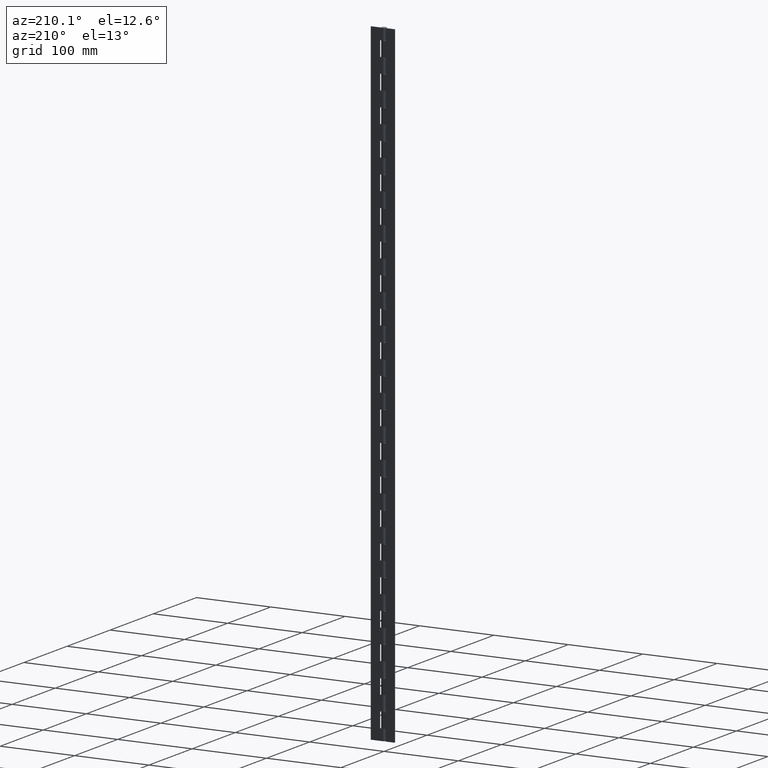
[diagram: clean part render]
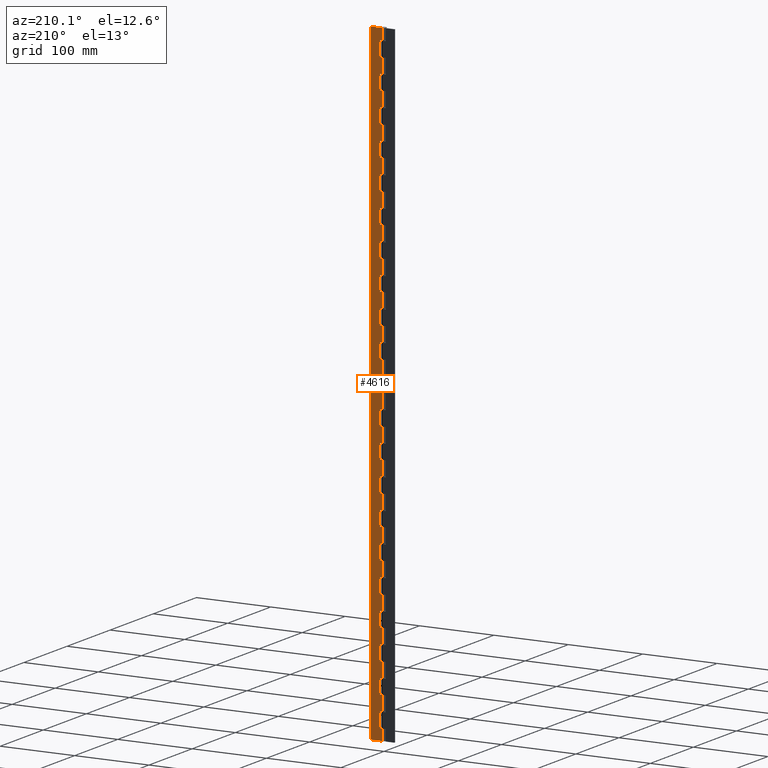
[diagram: same view with one face highlighted and labeled with its STEP entity id]
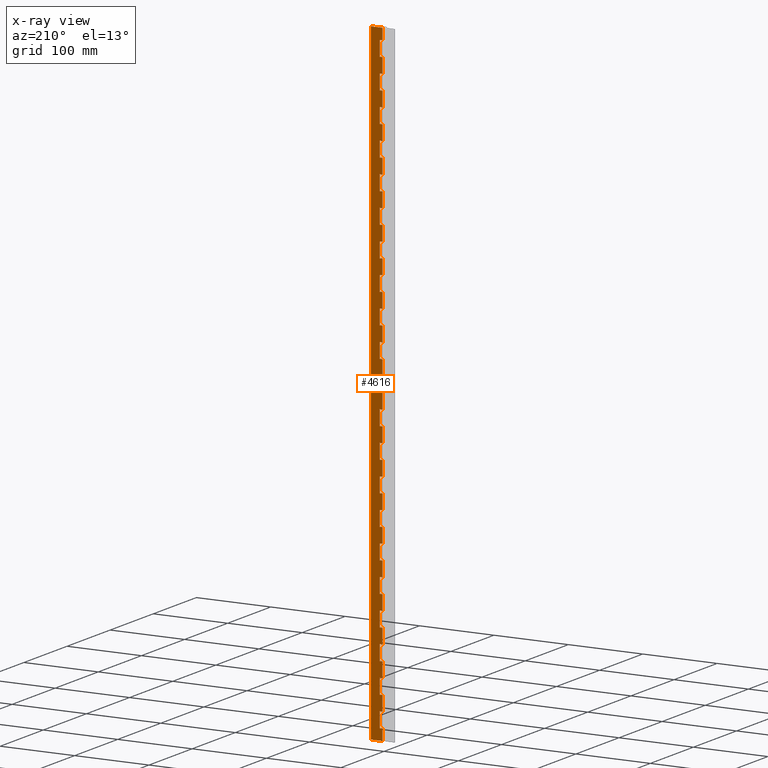
[diagram: x-ray of the same camera — body ghosted, the highlighted face saturated]
A machine part, auxiliary view. The second image highlights one B-rep face of the part: STEP entity #4616.
The next image is the same camera in x-ray: the body ghosted, the highlighted face saturated — about 0% of this face is hidden behind the body in this view.
In plain terms, the highlighted face is a freeform B-spline surface patch.
Its self-contained STEP definition (entity closure, byte-faithful):
#300=CARTESIAN_POINT('',(-5.969928E-016,3.250000000000000,15.000022000000049));
#301=VERTEX_POINT('',#300);
#358=CARTESIAN_POINT('',(4.0,3.250000000000000,15.000022000000049));
#359=VERTEX_POINT('',#358);
#365=CARTESIAN_POINT('',(4.0,3.250000000000000,15.000022000000049));
#366=CARTESIAN_POINT('',(-5.969928E-016,3.250000000000000,15.000022000000049));
#367=QUASI_UNIFORM_CURVE('',1,(#365,#366),.UNSPECIFIED.,.F.,.U.);
#368=EDGE_CURVE('',#359,#301,#367,.T.);
#385=CARTESIAN_POINT('',(4.0,3.250000000000000,35.000022000000087));
#386=VERTEX_POINT('',#385);
#392=CARTESIAN_POINT('',(4.0,3.250000000000000,35.000022000000087));
#393=CARTESIAN_POINT('',(4.0,3.250000000000000,15.000022000000049));
#394=QUASI_UNIFORM_CURVE('',1,(#392,#393),.UNSPECIFIED.,.F.,.U.);
#395=EDGE_CURVE('',#386,#359,#394,.T.);
#408=CARTESIAN_POINT('',(-5.969928E-016,3.250000000000000,35.000022000000087));
#409=VERTEX_POINT('',#408);
#429=CARTESIAN_POINT('',(-5.969928E-016,3.250000000000000,35.000022000000087));
#430=CARTESIAN_POINT('',(4.0,3.250000000000000,35.000022000000087));
#431=QUASI_UNIFORM_CURVE('',1,(#429,#430),.UNSPECIFIED.,.F.,.U.);
#432=EDGE_CURVE('',#409,#386,#431,.T.);
#476=CARTESIAN_POINT('',(-5.969928E-016,3.250000000000000,55.000022000000101));
#477=VERTEX_POINT('',#476);
#534=CARTESIAN_POINT('',(4.0,3.250000000000000,55.000022000000101));
#535=VERTEX_POINT('',#534);
#541=CARTESIAN_POINT('',(4.0,3.250000000000000,55.000022000000101));
#542=CARTESIAN_POINT('',(-5.969928E-016,3.250000000000000,55.000022000000101));
#543=QUASI_UNIFORM_CURVE('',1,(#541,#542),.UNSPECIFIED.,.F.,.U.);
#544=EDGE_CURVE('',#535,#477,#543,.T.);
#561=CARTESIAN_POINT('',(4.0,3.250000000000000,75.000022000000101));
#562=VERTEX_POINT('',#561);
#568=CARTESIAN_POINT('',(4.0,3.250000000000000,75.000022000000101));
#569=CARTESIAN_POINT('',(4.0,3.250000000000000,55.000022000000101));
#570=QUASI_UNIFORM_CURVE('',1,(#568,#569),.UNSPECIFIED.,.F.,.U.);
#571=EDGE_CURVE('',#562,#535,#570,.T.);
#584=CARTESIAN_POINT('',(-5.969928E-016,3.250000000000000,75.000022000000101));
#585=VERTEX_POINT('',#584);
#605=CARTESIAN_POINT('',(-5.969928E-016,3.250000000000000,75.000022000000101));
#606=CARTESIAN_POINT('',(4.0,3.250000000000000,75.000022000000101));
#607=QUASI_UNIFORM_CURVE('',1,(#605,#606),.UNSPECIFIED.,.F.,.U.);
#608=EDGE_CURVE('',#585,#562,#607,.T.);
#652=CARTESIAN_POINT('',(-5.969928E-016,3.250000000000000,95.000022000000101));
#653=VERTEX_POINT('',#652);
#710=CARTESIAN_POINT('',(4.0,3.250000000000000,95.000022000000101));
#711=VERTEX_POINT('',#710);
#717=CARTESIAN_POINT('',(4.0,3.250000000000000,95.000022000000101));
#718=CARTESIAN_POINT('',(-5.969928E-016,3.250000000000000,95.000022000000101));
#719=QUASI_UNIFORM_CURVE('',1,(#717,#718),.UNSPECIFIED.,.F.,.U.);
#720=EDGE_CURVE('',#711,#653,#719,.T.);
#737=CARTESIAN_POINT('',(4.0,3.250000000000000,115.000022000000200));
#738=VERTEX_POINT('',#737);
#744=CARTESIAN_POINT('',(4.0,3.250000000000000,115.000022000000200));
#745=CARTESIAN_POINT('',(4.0,3.250000000000000,95.000022000000101));
#746=QUASI_UNIFORM_CURVE('',1,(#744,#745),.UNSPECIFIED.,.F.,.U.);
#747=EDGE_CURVE('',#738,#711,#746,.T.);
#760=CARTESIAN_POINT('',(-5.969928E-016,3.250000000000000,115.000022000000200));
#761=VERTEX_POINT('',#760);
#781=CARTESIAN_POINT('',(-5.969928E-016,3.250000000000000,115.000022000000200));
#782=CARTESIAN_POINT('',(4.0,3.250000000000000,115.000022000000200));
#783=QUASI_UNIFORM_CURVE('',1,(#781,#782),.UNSPECIFIED.,.F.,.U.);
#784=EDGE_CURVE('',#761,#738,#783,.T.);
#828=CARTESIAN_POINT('',(-5.969928E-016,3.250000000000000,135.000022000000000));
#829=VERTEX_POINT('',#828);
#886=CARTESIAN_POINT('',(4.0,3.250000000000000,135.000022000000000));
#887=VERTEX_POINT('',#886);
#893=CARTESIAN_POINT('',(4.0,3.250000000000000,135.000022000000000));
#894=CARTESIAN_POINT('',(-5.969928E-016,3.250000000000000,135.000022000000000));
#895=QUASI_UNIFORM_CURVE('',1,(#893,#894),.UNSPECIFIED.,.F.,.U.);
#896=EDGE_CURVE('',#887,#829,#895,.T.);
#913=CARTESIAN_POINT('',(4.0,3.250000000000000,155.000022000000000));
#914=VERTEX_POINT('',#913);
#920=CARTESIAN_POINT('',(4.0,3.250000000000000,155.000022000000000));
#921=CARTESIAN_POINT('',(4.0,3.250000000000000,135.000022000000000));
#922=QUASI_UNIFORM_CURVE('',1,(#920,#921),.UNSPECIFIED.,.F.,.U.);
#923=EDGE_CURVE('',#914,#887,#922,.T.);
#936=CARTESIAN_POINT('',(-5.969928E-016,3.250000000000000,155.000022000000000));
#937=VERTEX_POINT('',#936);
#957=CARTESIAN_POINT('',(-5.969928E-016,3.250000000000000,155.000022000000000));
#958=CARTESIAN_POINT('',(4.0,3.250000000000000,155.000022000000000));
#959=QUASI_UNIFORM_CURVE('',1,(#957,#958),.UNSPECIFIED.,.F.,.U.);
#960=EDGE_CURVE('',#937,#914,#959,.T.);
#1004=CARTESIAN_POINT('',(-5.969928E-016,3.250000000000000,175.000022000000000));
#1005=VERTEX_POINT('',#1004);
#1062=CARTESIAN_POINT('',(4.0,3.250000000000000,175.000022000000000));
#1063=VERTEX_POINT('',#1062);
#1069=CARTESIAN_POINT('',(4.0,3.250000000000000,175.000022000000000));
#1070=CARTESIAN_POINT('',(-5.969928E-016,3.250000000000000,175.000022000000000));
#1071=QUASI_UNIFORM_CURVE('',1,(#1069,#1070),.UNSPECIFIED.,.F.,.U.);
#1072=EDGE_CURVE('',#1063,#1005,#1071,.T.);
#1089=CARTESIAN_POINT('',(4.0,3.250000000000000,195.000022000000000));
#1090=VERTEX_POINT('',#1089);
#1096=CARTESIAN_POINT('',(4.0,3.250000000000000,195.000022000000000));
#1097=CARTESIAN_POINT('',(4.0,3.250000000000000,175.000022000000000));
#1098=QUASI_UNIFORM_CURVE('',1,(#1096,#1097),.UNSPECIFIED.,.F.,.U.);
#1099=EDGE_CURVE('',#1090,#1063,#1098,.T.);
#1112=CARTESIAN_POINT('',(-5.969928E-016,3.250000000000000,195.000022000000000));
#1113=VERTEX_POINT('',#1112);
#1133=CARTESIAN_POINT('',(-5.969928E-016,3.250000000000000,195.000022000000000));
#1134=CARTESIAN_POINT('',(4.0,3.250000000000000,195.000022000000000));
#1135=QUASI_UNIFORM_CURVE('',1,(#1133,#1134),.UNSPECIFIED.,.F.,.U.);
#1136=EDGE_CURVE('',#1113,#1090,#1135,.T.);
#1180=CARTESIAN_POINT('',(-5.969928E-016,3.250000000000000,215.000022000000000));
#1181=VERTEX_POINT('',#1180);
#1238=CARTESIAN_POINT('',(4.0,3.250000000000000,215.000022000000000));
#1239=VERTEX_POINT('',#1238);
#1245=CARTESIAN_POINT('',(4.0,3.250000000000000,215.000022000000000));
#1246=CARTESIAN_POINT('',(-5.969928E-016,3.250000000000000,215.000022000000000));
#1247=QUASI_UNIFORM_CURVE('',1,(#1245,#1246),.UNSPECIFIED.,.F.,.U.);
#1248=EDGE_CURVE('',#1239,#1181,#1247,.T.);
#1265=CARTESIAN_POINT('',(4.0,3.250000000000000,235.000022000000000));
#1266=VERTEX_POINT('',#1265);
#1272=CARTESIAN_POINT('',(4.0,3.250000000000000,235.000022000000000));
#1273=CARTESIAN_POINT('',(4.0,3.250000000000000,215.000022000000000));
#1274=QUASI_UNIFORM_CURVE('',1,(#1272,#1273),.UNSPECIFIED.,.F.,.U.);
#1275=EDGE_CURVE('',#1266,#1239,#1274,.T.);
#1288=CARTESIAN_POINT('',(-5.969928E-016,3.250000000000000,235.000022000000000));
#1289=VERTEX_POINT('',#1288);
#1309=CARTESIAN_POINT('',(-5.969928E-016,3.250000000000000,235.000022000000000));
#1310=CARTESIAN_POINT('',(4.0,3.250000000000000,235.000022000000000));
#1311=QUASI_UNIFORM_CURVE('',1,(#1309,#1310),.UNSPECIFIED.,.F.,.U.);
#1312=EDGE_CURVE('',#1289,#1266,#1311,.T.);
#1356=CARTESIAN_POINT('',(-5.969928E-016,3.250000000000000,255.000022000000000));
#1357=VERTEX_POINT('',#1356);
#1414=CARTESIAN_POINT('',(4.0,3.250000000000000,255.000022000000000));
#1415=VERTEX_POINT('',#1414);
#1421=CARTESIAN_POINT('',(4.0,3.250000000000000,255.000022000000000));
#1422=CARTESIAN_POINT('',(-5.969928E-016,3.250000000000000,255.000022000000000));
#1423=QUASI_UNIFORM_CURVE('',1,(#1421,#1422),.UNSPECIFIED.,.F.,.U.);
#1424=EDGE_CURVE('',#1415,#1357,#1423,.T.);
#1441=CARTESIAN_POINT('',(4.0,3.250000000000000,275.000022000000000));
#1442=VERTEX_POINT('',#1441);
#1448=CARTESIAN_POINT('',(4.0,3.250000000000000,275.000022000000000));
#1449=CARTESIAN_POINT('',(4.0,3.250000000000000,255.000022000000000));
#1450=QUASI_UNIFORM_CURVE('',1,(#1448,#1449),.UNSPECIFIED.,.F.,.U.);
#1451=EDGE_CURVE('',#1442,#1415,#1450,.T.);
#1464=CARTESIAN_POINT('',(-5.969928E-016,3.250000000000000,275.000022000000000));
#1465=VERTEX_POINT('',#1464);
#1485=CARTESIAN_POINT('',(-5.969928E-016,3.250000000000000,275.000022000000000));
#1486=CARTESIAN_POINT('',(4.0,3.250000000000000,275.000022000000000));
#1487=QUASI_UNIFORM_CURVE('',1,(#1485,#1486),.UNSPECIFIED.,.F.,.U.);
#1488=EDGE_CURVE('',#1465,#1442,#1487,.T.);
#1532=CARTESIAN_POINT('',(-5.969928E-016,3.250000000000000,295.000021999999890));
#1533=VERTEX_POINT('',#1532);
#1590=CARTESIAN_POINT('',(4.0,3.250000000000000,295.000021999999890));
#1591=VERTEX_POINT('',#1590);
#1597=CARTESIAN_POINT('',(4.0,3.250000000000000,295.000021999999890));
#1598=CARTESIAN_POINT('',(-5.969928E-016,3.250000000000000,295.000021999999890));
#1599=QUASI_UNIFORM_CURVE('',1,(#1597,#1598),.UNSPECIFIED.,.F.,.U.);
#1600=EDGE_CURVE('',#1591,#1533,#1599,.T.);
#1617=CARTESIAN_POINT('',(4.0,3.250000000000000,315.000022000000000));
#1618=VERTEX_POINT('',#1617);
#1624=CARTESIAN_POINT('',(4.0,3.250000000000000,315.000022000000000));
#1625=CARTESIAN_POINT('',(4.0,3.250000000000000,295.000021999999890));
#1626=QUASI_UNIFORM_CURVE('',1,(#1624,#1625),.UNSPECIFIED.,.F.,.U.);
#1627=EDGE_CURVE('',#1618,#1591,#1626,.T.);
#1640=CARTESIAN_POINT('',(-5.969928E-016,3.250000000000000,315.000022000000000));
#1641=VERTEX_POINT('',#1640);
#1661=CARTESIAN_POINT('',(-5.969928E-016,3.250000000000000,315.000022000000000));
#1662=CARTESIAN_POINT('',(4.0,3.250000000000000,315.000022000000000));
#1663=QUASI_UNIFORM_CURVE('',1,(#1661,#1662),.UNSPECIFIED.,.F.,.U.);
#1664=EDGE_CURVE('',#1641,#1618,#1663,.T.);
#1708=CARTESIAN_POINT('',(-5.969928E-016,3.250000000000000,335.000022000000000));
#1709=VERTEX_POINT('',#1708);
#1766=CARTESIAN_POINT('',(4.0,3.250000000000000,335.000022000000000));
#1767=VERTEX_POINT('',#1766);
#1773=CARTESIAN_POINT('',(4.0,3.250000000000000,335.000022000000000));
#1774=CARTESIAN_POINT('',(-5.969928E-016,3.250000000000000,335.000022000000000));
#1775=QUASI_UNIFORM_CURVE('',1,(#1773,#1774),.UNSPECIFIED.,.F.,.U.);
#1776=EDGE_CURVE('',#1767,#1709,#1775,.T.);
#1793=CARTESIAN_POINT('',(4.0,3.250000000000000,355.000022000000000));
#1794=VERTEX_POINT('',#1793);
#1800=CARTESIAN_POINT('',(4.0,3.250000000000000,355.000022000000000));
#1801=CARTESIAN_POINT('',(4.0,3.250000000000000,335.000022000000000));
#1802=QUASI_UNIFORM_CURVE('',1,(#1800,#1801),.UNSPECIFIED.,.F.,.U.);
#1803=EDGE_CURVE('',#1794,#1767,#1802,.T.);
#1816=CARTESIAN_POINT('',(-5.969928E-016,3.250000000000000,355.000022000000000));
#1817=VERTEX_POINT('',#1816);
#1837=CARTESIAN_POINT('',(-5.969928E-016,3.250000000000000,355.000022000000000));
#1838=CARTESIAN_POINT('',(4.0,3.250000000000000,355.000022000000000));
#1839=QUASI_UNIFORM_CURVE('',1,(#1837,#1838),.UNSPECIFIED.,.F.,.U.);
#1840=EDGE_CURVE('',#1817,#1794,#1839,.T.);
#1884=CARTESIAN_POINT('',(-5.969928E-016,3.250000000000000,375.000022000000000));
#1885=VERTEX_POINT('',#1884);
#1942=CARTESIAN_POINT('',(4.0,3.250000000000000,375.000022000000000));
#1943=VERTEX_POINT('',#1942);
#1949=CARTESIAN_POINT('',(4.0,3.250000000000000,375.000022000000000));
#1950=CARTESIAN_POINT('',(-5.969928E-016,3.250000000000000,375.000022000000000));
#1951=QUASI_UNIFORM_CURVE('',1,(#1949,#1950),.UNSPECIFIED.,.F.,.U.);
#1952=EDGE_CURVE('',#1943,#1885,#1951,.T.);
#1969=CARTESIAN_POINT('',(4.0,3.250000000000000,395.000022000000000));
#1970=VERTEX_POINT('',#1969);
#1976=CARTESIAN_POINT('',(4.0,3.250000000000000,395.000022000000000));
#1977=CARTESIAN_POINT('',(4.0,3.250000000000000,375.000022000000000));
#1978=QUASI_UNIFORM_CURVE('',1,(#1976,#1977),.UNSPECIFIED.,.F.,.U.);
#1979=EDGE_CURVE('',#1970,#1943,#1978,.T.);
#1992=CARTESIAN_POINT('',(-5.969928E-016,3.250000000000000,395.000022000000000));
#1993=VERTEX_POINT('',#1992);
#2013=CARTESIAN_POINT('',(-5.969928E-016,3.250000000000000,395.000022000000000));
#2014=CARTESIAN_POINT('',(4.0,3.250000000000000,395.000022000000000));
#2015=QUASI_UNIFORM_CURVE('',1,(#2013,#2014),.UNSPECIFIED.,.F.,.U.);
#2016=EDGE_CURVE('',#1993,#1970,#2015,.T.);
#2060=CARTESIAN_POINT('',(-5.969928E-016,3.250000000000000,415.000022000000000));
#2061=VERTEX_POINT('',#2060);
#2118=CARTESIAN_POINT('',(4.0,3.250000000000000,415.000022000000000));
#2119=VERTEX_POINT('',#2118);
#2125=CARTESIAN_POINT('',(4.0,3.250000000000000,415.000022000000000));
#2126=CARTESIAN_POINT('',(-5.969928E-016,3.250000000000000,415.000022000000000));
#2127=QUASI_UNIFORM_CURVE('',1,(#2125,#2126),.UNSPECIFIED.,.F.,.U.);
#2128=EDGE_CURVE('',#2119,#2061,#2127,.T.);
#2145=CARTESIAN_POINT('',(4.0,3.250000000000000,435.000022000000000));
#2146=VERTEX_POINT('',#2145);
#2152=CARTESIAN_POINT('',(4.0,3.250000000000000,435.000022000000000));
#2153=CARTESIAN_POINT('',(4.0,3.250000000000000,415.000022000000000));
#2154=QUASI_UNIFORM_CURVE('',1,(#2152,#2153),.UNSPECIFIED.,.F.,.U.);
#2155=EDGE_CURVE('',#2146,#2119,#2154,.T.);
#2168=CARTESIAN_POINT('',(-5.969928E-016,3.250000000000000,435.000022000000000));
#2169=VERTEX_POINT('',#2168);
#2189=CARTESIAN_POINT('',(-5.969928E-016,3.250000000000000,435.000022000000000));
#2190=CARTESIAN_POINT('',(4.0,3.250000000000000,435.000022000000000));
#2191=QUASI_UNIFORM_CURVE('',1,(#2189,#2190),.UNSPECIFIED.,.F.,.U.);
#2192=EDGE_CURVE('',#2169,#2146,#2191,.T.);
#2236=CARTESIAN_POINT('',(-5.969928E-016,3.250000000000000,455.000022000000000));
#2237=VERTEX_POINT('',#2236);
#2294=CARTESIAN_POINT('',(4.0,3.250000000000000,455.000022000000000));
#2295=VERTEX_POINT('',#2294);
#2301=CARTESIAN_POINT('',(4.0,3.250000000000000,455.000022000000000));
#2302=CARTESIAN_POINT('',(-5.969928E-016,3.250000000000000,455.000022000000000));
#2303=QUASI_UNIFORM_CURVE('',1,(#2301,#2302),.UNSPECIFIED.,.F.,.U.);
#2304=EDGE_CURVE('',#2295,#2237,#2303,.T.);
#2321=CARTESIAN_POINT('',(4.0,3.250000000000000,475.000022000000000));
#2322=VERTEX_POINT('',#2321);
#2328=CARTESIAN_POINT('',(4.0,3.250000000000000,475.000022000000000));
#2329=CARTESIAN_POINT('',(4.0,3.250000000000000,455.000022000000000));
#2330=QUASI_UNIFORM_CURVE('',1,(#2328,#2329),.UNSPECIFIED.,.F.,.U.);
#2331=EDGE_CURVE('',#2322,#2295,#2330,.T.);
#2344=CARTESIAN_POINT('',(-5.969928E-016,3.250000000000000,475.000022000000000));
#2345=VERTEX_POINT('',#2344);
#2365=CARTESIAN_POINT('',(-5.969928E-016,3.250000000000000,475.000022000000000));
#2366=CARTESIAN_POINT('',(4.0,3.250000000000000,475.000022000000000));
#2367=QUASI_UNIFORM_CURVE('',1,(#2365,#2366),.UNSPECIFIED.,.F.,.U.);
#2368=EDGE_CURVE('',#2345,#2322,#2367,.T.);
#2412=CARTESIAN_POINT('',(-5.969928E-016,3.250000000000000,495.000022000000000));
#2413=VERTEX_POINT('',#2412);
#2470=CARTESIAN_POINT('',(4.0,3.250000000000000,495.000022000000000));
#2471=VERTEX_POINT('',#2470);
#2477=CARTESIAN_POINT('',(4.0,3.250000000000000,495.000022000000000));
#2478=CARTESIAN_POINT('',(-5.969928E-016,3.250000000000000,495.000022000000000));
#2479=QUASI_UNIFORM_CURVE('',1,(#2477,#2478),.UNSPECIFIED.,.F.,.U.);
#2480=EDGE_CURVE('',#2471,#2413,#2479,.T.);
#2497=CARTESIAN_POINT('',(4.0,3.250000000000000,515.000021999999940));
#2498=VERTEX_POINT('',#2497);
#2504=CARTESIAN_POINT('',(4.0,3.250000000000000,515.000021999999940));
#2505=CARTESIAN_POINT('',(4.0,3.250000000000000,495.000022000000000));
#2506=QUASI_UNIFORM_CURVE('',1,(#2504,#2505),.UNSPECIFIED.,.F.,.U.);
#2507=EDGE_CURVE('',#2498,#2471,#2506,.T.);
#2520=CARTESIAN_POINT('',(-5.969928E-016,3.250000000000000,515.000021999999940));
#2521=VERTEX_POINT('',#2520);
#2541=CARTESIAN_POINT('',(-5.969928E-016,3.250000000000000,515.000021999999940));
#2542=CARTESIAN_POINT('',(4.0,3.250000000000000,515.000021999999940));
#2543=QUASI_UNIFORM_CURVE('',1,(#2541,#2542),.UNSPECIFIED.,.F.,.U.);
#2544=EDGE_CURVE('',#2521,#2498,#2543,.T.);
#2588=CARTESIAN_POINT('',(-5.969928E-016,3.250000000000000,535.000021999999940));
#2589=VERTEX_POINT('',#2588);
#2646=CARTESIAN_POINT('',(4.0,3.250000000000000,535.000021999999940));
#2647=VERTEX_POINT('',#2646);
#2653=CARTESIAN_POINT('',(4.0,3.250000000000000,535.000021999999940));
#2654=CARTESIAN_POINT('',(-5.969928E-016,3.250000000000000,535.000021999999940));
#2655=QUASI_UNIFORM_CURVE('',1,(#2653,#2654),.UNSPECIFIED.,.F.,.U.);
#2656=EDGE_CURVE('',#2647,#2589,#2655,.T.);
#2673=CARTESIAN_POINT('',(4.0,3.250000000000000,555.000021999999940));
#2674=VERTEX_POINT('',#2673);
#2680=CARTESIAN_POINT('',(4.0,3.250000000000000,555.000021999999940));
#2681=CARTESIAN_POINT('',(4.0,3.250000000000000,535.000021999999940));
#2682=QUASI_UNIFORM_CURVE('',1,(#2680,#2681),.UNSPECIFIED.,.F.,.U.);
#2683=EDGE_CURVE('',#2674,#2647,#2682,.T.);
#2696=CARTESIAN_POINT('',(-5.969928E-016,3.250000000000000,555.000021999999940));
#2697=VERTEX_POINT('',#2696);
#2717=CARTESIAN_POINT('',(-5.969928E-016,3.250000000000000,555.000021999999940));
#2718=CARTESIAN_POINT('',(4.0,3.250000000000000,555.000021999999940));
#2719=QUASI_UNIFORM_CURVE('',1,(#2717,#2718),.UNSPECIFIED.,.F.,.U.);
#2720=EDGE_CURVE('',#2697,#2674,#2719,.T.);
#2764=CARTESIAN_POINT('',(-5.969928E-016,3.250000000000000,575.000021999999940));
#2765=VERTEX_POINT('',#2764);
#2822=CARTESIAN_POINT('',(4.0,3.250000000000000,575.000021999999940));
#2823=VERTEX_POINT('',#2822);
#2829=CARTESIAN_POINT('',(4.0,3.250000000000000,575.000021999999940));
#2830=CARTESIAN_POINT('',(-5.969928E-016,3.250000000000000,575.000021999999940));
#2831=QUASI_UNIFORM_CURVE('',1,(#2829,#2830),.UNSPECIFIED.,.F.,.U.);
#2832=EDGE_CURVE('',#2823,#2765,#2831,.T.);
#2849=CARTESIAN_POINT('',(4.0,3.250000000000000,595.000022000000060));
#2850=VERTEX_POINT('',#2849);
#2856=CARTESIAN_POINT('',(4.0,3.250000000000000,595.000022000000060));
#2857=CARTESIAN_POINT('',(4.0,3.250000000000000,575.000021999999940));
#2858=QUASI_UNIFORM_CURVE('',1,(#2856,#2857),.UNSPECIFIED.,.F.,.U.);
#2859=EDGE_CURVE('',#2850,#2823,#2858,.T.);
#2872=CARTESIAN_POINT('',(-5.969928E-016,3.250000000000000,595.000022000000060));
#2873=VERTEX_POINT('',#2872);
#2893=CARTESIAN_POINT('',(-5.969928E-016,3.250000000000000,595.000022000000060));
#2894=CARTESIAN_POINT('',(4.0,3.250000000000000,595.000022000000060));
#2895=QUASI_UNIFORM_CURVE('',1,(#2893,#2894),.UNSPECIFIED.,.F.,.U.);
#2896=EDGE_CURVE('',#2873,#2850,#2895,.T.);
#2940=CARTESIAN_POINT('',(-5.969928E-016,3.250000000000000,615.000022000000060));
#2941=VERTEX_POINT('',#2940);
#2998=CARTESIAN_POINT('',(4.0,3.250000000000000,615.000022000000060));
#2999=VERTEX_POINT('',#2998);
#3005=CARTESIAN_POINT('',(4.0,3.250000000000000,615.000022000000060));
#3006=CARTESIAN_POINT('',(-5.969928E-016,3.250000000000000,615.000022000000060));
#3007=QUASI_UNIFORM_CURVE('',1,(#3005,#3006),.UNSPECIFIED.,.F.,.U.);
#3008=EDGE_CURVE('',#2999,#2941,#3007,.T.);
#3025=CARTESIAN_POINT('',(4.0,3.250000000000000,635.000022000000060));
#3026=VERTEX_POINT('',#3025);
#3032=CARTESIAN_POINT('',(4.0,3.250000000000000,635.000022000000060));
#3033=CARTESIAN_POINT('',(4.0,3.250000000000000,615.000022000000060));
#3034=QUASI_UNIFORM_CURVE('',1,(#3032,#3033),.UNSPECIFIED.,.F.,.U.);
#3035=EDGE_CURVE('',#3026,#2999,#3034,.T.);
#3048=CARTESIAN_POINT('',(-5.969928E-016,3.250000000000000,635.000022000000060));
#3049=VERTEX_POINT('',#3048);
#3069=CARTESIAN_POINT('',(-5.969928E-016,3.250000000000000,635.000022000000060));
#3070=CARTESIAN_POINT('',(4.0,3.250000000000000,635.000022000000060));
#3071=QUASI_UNIFORM_CURVE('',1,(#3069,#3070),.UNSPECIFIED.,.F.,.U.);
#3072=EDGE_CURVE('',#3049,#3026,#3071,.T.);
#3116=CARTESIAN_POINT('',(-5.969928E-016,3.250000000000000,655.000021999999940));
#3117=VERTEX_POINT('',#3116);
#3174=CARTESIAN_POINT('',(4.0,3.250000000000000,655.000021999999940));
#3175=VERTEX_POINT('',#3174);
#3181=CARTESIAN_POINT('',(4.0,3.250000000000000,655.000021999999940));
#3182=CARTESIAN_POINT('',(-5.969928E-016,3.250000000000000,655.000021999999940));
#3183=QUASI_UNIFORM_CURVE('',1,(#3181,#3182),.UNSPECIFIED.,.F.,.U.);
#3184=EDGE_CURVE('',#3175,#3117,#3183,.T.);
#3201=CARTESIAN_POINT('',(4.0,3.250000000000000,675.000021999999940));
#3202=VERTEX_POINT('',#3201);
#3208=CARTESIAN_POINT('',(4.0,3.250000000000000,675.000021999999940));
#3209=CARTESIAN_POINT('',(4.0,3.250000000000000,655.000021999999940));
#3210=QUASI_UNIFORM_CURVE('',1,(#3208,#3209),.UNSPECIFIED.,.F.,.U.);
#3211=EDGE_CURVE('',#3202,#3175,#3210,.T.);
#3224=CARTESIAN_POINT('',(-5.969928E-016,3.250000000000000,675.000021999999940));
#3225=VERTEX_POINT('',#3224);
#3245=CARTESIAN_POINT('',(-5.969928E-016,3.250000000000000,675.000021999999940));
#3246=CARTESIAN_POINT('',(4.0,3.250000000000000,675.000021999999940));
#3247=QUASI_UNIFORM_CURVE('',1,(#3245,#3246),.UNSPECIFIED.,.F.,.U.);
#3248=EDGE_CURVE('',#3225,#3202,#3247,.T.);
#3292=CARTESIAN_POINT('',(-5.969928E-016,3.250000000000000,695.000021999999940));
#3293=VERTEX_POINT('',#3292);
#3350=CARTESIAN_POINT('',(4.0,3.250000000000000,695.000021999999940));
#3351=VERTEX_POINT('',#3350);
#3357=CARTESIAN_POINT('',(4.0,3.250000000000000,695.000021999999940));
#3358=CARTESIAN_POINT('',(-5.969928E-016,3.250000000000000,695.000021999999940));
#3359=QUASI_UNIFORM_CURVE('',1,(#3357,#3358),.UNSPECIFIED.,.F.,.U.);
#3360=EDGE_CURVE('',#3351,#3293,#3359,.T.);
#3377=CARTESIAN_POINT('',(4.0,3.250000000000000,715.000022000000060));
#3378=VERTEX_POINT('',#3377);
#3384=CARTESIAN_POINT('',(4.0,3.250000000000000,715.000022000000060));
#3385=CARTESIAN_POINT('',(4.0,3.250000000000000,695.000021999999940));
#3386=QUASI_UNIFORM_CURVE('',1,(#3384,#3385),.UNSPECIFIED.,.F.,.U.);
#3387=EDGE_CURVE('',#3378,#3351,#3386,.T.);
#3400=CARTESIAN_POINT('',(-5.969928E-016,3.250000000000000,715.000022000000060));
#3401=VERTEX_POINT('',#3400);
#3421=CARTESIAN_POINT('',(-5.969928E-016,3.250000000000000,715.000022000000060));
#3422=CARTESIAN_POINT('',(4.0,3.250000000000000,715.000022000000060));
#3423=QUASI_UNIFORM_CURVE('',1,(#3421,#3422),.UNSPECIFIED.,.F.,.U.);
#3424=EDGE_CURVE('',#3401,#3378,#3423,.T.);
#3468=CARTESIAN_POINT('',(-5.969928E-016,3.250000000000000,735.000022000000060));
#3469=VERTEX_POINT('',#3468);
#3526=CARTESIAN_POINT('',(4.0,3.250000000000000,735.000022000000060));
#3527=VERTEX_POINT('',#3526);
#3533=CARTESIAN_POINT('',(4.0,3.250000000000000,735.000022000000060));
#3534=CARTESIAN_POINT('',(-5.969928E-016,3.250000000000000,735.000022000000060));
#3535=QUASI_UNIFORM_CURVE('',1,(#3533,#3534),.UNSPECIFIED.,.F.,.U.);
#3536=EDGE_CURVE('',#3527,#3469,#3535,.T.);
#3553=CARTESIAN_POINT('',(4.0,3.250000000000000,755.000022000000060));
#3554=VERTEX_POINT('',#3553);
#3560=CARTESIAN_POINT('',(4.0,3.250000000000000,755.000022000000060));
#3561=CARTESIAN_POINT('',(4.0,3.250000000000000,735.000022000000060));
#3562=QUASI_UNIFORM_CURVE('',1,(#3560,#3561),.UNSPECIFIED.,.F.,.U.);
#3563=EDGE_CURVE('',#3554,#3527,#3562,.T.);
#3576=CARTESIAN_POINT('',(-5.969928E-016,3.250000000000000,755.000022000000060));
#3577=VERTEX_POINT('',#3576);
#3597=CARTESIAN_POINT('',(-5.969928E-016,3.250000000000000,755.000022000000060));
#3598=CARTESIAN_POINT('',(4.0,3.250000000000000,755.000022000000060));
#3599=QUASI_UNIFORM_CURVE('',1,(#3597,#3598),.UNSPECIFIED.,.F.,.U.);
#3600=EDGE_CURVE('',#3577,#3554,#3599,.T.);
#3644=CARTESIAN_POINT('',(-5.969928E-016,3.250000000000000,775.000021999999940));
#3645=VERTEX_POINT('',#3644);
#3702=CARTESIAN_POINT('',(4.0,3.250000000000000,775.000021999999940));
#3703=VERTEX_POINT('',#3702);
#3709=CARTESIAN_POINT('',(4.0,3.250000000000000,775.000021999999940));
#3710=CARTESIAN_POINT('',(-5.969928E-016,3.250000000000000,775.000021999999940));
#3711=QUASI_UNIFORM_CURVE('',1,(#3709,#3710),.UNSPECIFIED.,.F.,.U.);
#3712=EDGE_CURVE('',#3703,#3645,#3711,.T.);
#3729=CARTESIAN_POINT('',(4.0,3.250000000000000,795.000021999999940));
#3730=VERTEX_POINT('',#3729);
#3736=CARTESIAN_POINT('',(4.0,3.250000000000000,795.000021999999940));
#3737=CARTESIAN_POINT('',(4.0,3.250000000000000,775.000021999999940));
#3738=QUASI_UNIFORM_CURVE('',1,(#3736,#3737),.UNSPECIFIED.,.F.,.U.);
#3739=EDGE_CURVE('',#3730,#3703,#3738,.T.);
#3752=CARTESIAN_POINT('',(-5.969928E-016,3.250000000000000,795.000021999999940));
#3753=VERTEX_POINT('',#3752);
#3773=CARTESIAN_POINT('',(-5.969928E-016,3.250000000000000,795.000021999999940));
#3774=CARTESIAN_POINT('',(4.0,3.250000000000000,795.000021999999940));
#3775=QUASI_UNIFORM_CURVE('',1,(#3773,#3774),.UNSPECIFIED.,.F.,.U.);
#3776=EDGE_CURVE('',#3753,#3730,#3775,.T.);
#3829=CARTESIAN_POINT('',(4.0,3.250000000000000,815.000021999999940));
#3830=VERTEX_POINT('',#3829);
#3836=CARTESIAN_POINT('',(-5.969956E-016,3.250000000000000,815.000021999999940));
#3837=VERTEX_POINT('',#3836);
#3838=CARTESIAN_POINT('',(4.0,3.250000000000000,815.000021999999940));
#3839=CARTESIAN_POINT('',(-5.969956E-016,3.250000000000000,815.000021999999940));
#3840=QUASI_UNIFORM_CURVE('',1,(#3838,#3839),.UNSPECIFIED.,.F.,.U.);
#3841=EDGE_CURVE('',#3830,#3837,#3840,.T.);
#3905=CARTESIAN_POINT('',(4.0,3.250000000000000,835.000022000000060));
#3906=VERTEX_POINT('',#3905);
#3912=CARTESIAN_POINT('',(4.0,3.250000000000000,835.000022000000060));
#3913=CARTESIAN_POINT('',(4.0,3.250000000000000,815.000021999999940));
#3914=QUASI_UNIFORM_CURVE('',1,(#3912,#3913),.UNSPECIFIED.,.F.,.U.);
#3915=EDGE_CURVE('',#3906,#3830,#3914,.T.);
#3961=CARTESIAN_POINT('',(0.0,3.250000000000000,835.000022000000060));
#3962=VERTEX_POINT('',#3961);
#3982=CARTESIAN_POINT('',(0.0,3.250000000000000,835.000022000000060));
#3983=CARTESIAN_POINT('',(4.0,3.250000000000000,835.000022000000060));
#3984=QUASI_UNIFORM_CURVE('',1,(#3982,#3983),.UNSPECIFIED.,.F.,.U.);
#3985=EDGE_CURVE('',#3962,#3906,#3984,.T.);
#3996=CARTESIAN_POINT('',(-5.969956E-016,3.250000000000000,0.0));
#3997=VERTEX_POINT('',#3996);
#3998=CARTESIAN_POINT('',(16.0,3.250000000000000,0.0));
#3999=VERTEX_POINT('',#3998);
#4000=CARTESIAN_POINT('',(-5.969956E-016,3.250000000000000,0.0));
#4001=CARTESIAN_POINT('',(16.0,3.250000000000000,0.0));
#4002=QUASI_UNIFORM_CURVE('',1,(#4000,#4001),.UNSPECIFIED.,.F.,.U.);
#4003=EDGE_CURVE('',#3997,#3999,#4002,.T.);
#4074=CARTESIAN_POINT('',(-5.969956E-016,3.250000000000000,850.000022000000060));
#4075=VERTEX_POINT('',#4074);
#4076=CARTESIAN_POINT('',(16.0,3.250000000000000,850.000022000000060));
#4077=VERTEX_POINT('',#4076);
#4078=CARTESIAN_POINT('',(-5.969956E-016,3.250000000000000,850.000022000000060));
#4079=CARTESIAN_POINT('',(16.0,3.250000000000000,850.000022000000060));
#4080=QUASI_UNIFORM_CURVE('',1,(#4078,#4079),.UNSPECIFIED.,.F.,.U.);
#4081=EDGE_CURVE('',#4075,#4077,#4080,.T.);
#4169=CARTESIAN_POINT('',(-5.969956E-016,3.250000000000000,850.000022000000060));
#4170=CARTESIAN_POINT('',(0.0,3.250000000000000,835.000022000000060));
#4171=QUASI_UNIFORM_CURVE('',1,(#4169,#4170),.UNSPECIFIED.,.F.,.U.);
#4172=EDGE_CURVE('',#4075,#3962,#4171,.T.);
#4427=CARTESIAN_POINT('',(16.0,3.250000000000000,850.000022000000060));
#4428=CARTESIAN_POINT('',(16.0,3.250000000000000,0.0));
#4429=QUASI_UNIFORM_CURVE('',1,(#4427,#4428),.UNSPECIFIED.,.F.,.U.);
#4430=EDGE_CURVE('',#4077,#3999,#4429,.T.);
#4437=CARTESIAN_POINT('',(-0.799199968988897,3.250000000000000,-42.457496414637902));
#4438=CARTESIAN_POINT('',(-0.799199968988897,3.250000000000000,892.457480416676050));
#4439=CARTESIAN_POINT('',(16.799200398142339,3.250000000000000,-42.457496414637902));
#4440=CARTESIAN_POINT('',(16.799200398142339,3.250000000000000,892.457480416676050));
#4441=B_SPLINE_SURFACE_WITH_KNOTS('',1,1,((#4437,#4439),(#4438,#4440)),.UNSPECIFIED.,.F.,.F.,.U.,(2,2),(2,2),(0.0,934.914976831313990),(0.0,17.598400367131241),.UNSPECIFIED.);
#4442=ORIENTED_EDGE('',*,*,#432,.F.);
#4443=CARTESIAN_POINT('',(-5.969928E-016,3.250000000000000,55.000022000000101));
#4444=CARTESIAN_POINT('',(-5.969928E-016,3.250000000000000,35.000022000000087));
#4445=QUASI_UNIFORM_CURVE('',1,(#4443,#4444),.UNSPECIFIED.,.F.,.U.);
#4446=EDGE_CURVE('',#477,#409,#4445,.T.);
#4447=ORIENTED_EDGE('',*,*,#4446,.F.);
#4448=ORIENTED_EDGE('',*,*,#544,.F.);
#4449=ORIENTED_EDGE('',*,*,#571,.F.);
#4450=ORIENTED_EDGE('',*,*,#608,.F.);
#4451=CARTESIAN_POINT('',(-5.969928E-016,3.250000000000000,95.000022000000101));
#4452=CARTESIAN_POINT('',(-5.969928E-016,3.250000000000000,75.000022000000101));
#4453=QUASI_UNIFORM_CURVE('',1,(#4451,#4452),.UNSPECIFIED.,.F.,.U.);
#4454=EDGE_CURVE('',#653,#585,#4453,.T.);
#4455=ORIENTED_EDGE('',*,*,#4454,.F.);
#4456=ORIENTED_EDGE('',*,*,#720,.F.);
#4457=ORIENTED_EDGE('',*,*,#747,.F.);
#4458=ORIENTED_EDGE('',*,*,#784,.F.);
#4459=CARTESIAN_POINT('',(-5.969928E-016,3.250000000000000,135.000022000000000));
#4460=CARTESIAN_POINT('',(-5.969928E-016,3.250000000000000,115.000022000000200));
#4461=QUASI_UNIFORM_CURVE('',1,(#4459,#4460),.UNSPECIFIED.,.F.,.U.);
#4462=EDGE_CURVE('',#829,#761,#4461,.T.);
#4463=ORIENTED_EDGE('',*,*,#4462,.F.);
#4464=ORIENTED_EDGE('',*,*,#896,.F.);
#4465=ORIENTED_EDGE('',*,*,#923,.F.);
#4466=ORIENTED_EDGE('',*,*,#960,.F.);
#4467=CARTESIAN_POINT('',(-5.969928E-016,3.250000000000000,175.000022000000000));
#4468=CARTESIAN_POINT('',(-5.969928E-016,3.250000000000000,155.000022000000000));
#4469=QUASI_UNIFORM_CURVE('',1,(#4467,#4468),.UNSPECIFIED.,.F.,.U.);
#4470=EDGE_CURVE('',#1005,#937,#4469,.T.);
#4471=ORIENTED_EDGE('',*,*,#4470,.F.);
#4472=ORIENTED_EDGE('',*,*,#1072,.F.);
#4473=ORIENTED_EDGE('',*,*,#1099,.F.);
#4474=ORIENTED_EDGE('',*,*,#1136,.F.);
#4475=CARTESIAN_POINT('',(-5.969928E-016,3.250000000000000,215.000022000000000));
#4476=CARTESIAN_POINT('',(-5.969928E-016,3.250000000000000,195.000022000000000));
#4477=QUASI_UNIFORM_CURVE('',1,(#4475,#4476),.UNSPECIFIED.,.F.,.U.);
#4478=EDGE_CURVE('',#1181,#1113,#4477,.T.);
#4479=ORIENTED_EDGE('',*,*,#4478,.F.);
#4480=ORIENTED_EDGE('',*,*,#1248,.F.);
#4481=ORIENTED_EDGE('',*,*,#1275,.F.);
#4482=ORIENTED_EDGE('',*,*,#1312,.F.);
#4483=CARTESIAN_POINT('',(-5.969928E-016,3.250000000000000,255.000022000000000));
#4484=CARTESIAN_POINT('',(-5.969928E-016,3.250000000000000,235.000022000000000));
#4485=QUASI_UNIFORM_CURVE('',1,(#4483,#4484),.UNSPECIFIED.,.F.,.U.);
#4486=EDGE_CURVE('',#1357,#1289,#4485,.T.);
#4487=ORIENTED_EDGE('',*,*,#4486,.F.);
#4488=ORIENTED_EDGE('',*,*,#1424,.F.);
#4489=ORIENTED_EDGE('',*,*,#1451,.F.);
#4490=ORIENTED_EDGE('',*,*,#1488,.F.);
#4491=CARTESIAN_POINT('',(-5.969928E-016,3.250000000000000,295.000021999999890));
#4492=CARTESIAN_POINT('',(-5.969928E-016,3.250000000000000,275.000022000000000));
#4493=QUASI_UNIFORM_CURVE('',1,(#4491,#4492),.UNSPECIFIED.,.F.,.U.);
#4494=EDGE_CURVE('',#1533,#1465,#4493,.T.);
#4495=ORIENTED_EDGE('',*,*,#4494,.F.);
#4496=ORIENTED_EDGE('',*,*,#1600,.F.);
#4497=ORIENTED_EDGE('',*,*,#1627,.F.);
#4498=ORIENTED_EDGE('',*,*,#1664,.F.);
#4499=CARTESIAN_POINT('',(-5.969928E-016,3.250000000000000,335.000022000000000));
#4500=CARTESIAN_POINT('',(-5.969928E-016,3.250000000000000,315.000022000000000));
#4501=QUASI_UNIFORM_CURVE('',1,(#4499,#4500),.UNSPECIFIED.,.F.,.U.);
#4502=EDGE_CURVE('',#1709,#1641,#4501,.T.);
#4503=ORIENTED_EDGE('',*,*,#4502,.F.);
#4504=ORIENTED_EDGE('',*,*,#1776,.F.);
#4505=ORIENTED_EDGE('',*,*,#1803,.F.);
#4506=ORIENTED_EDGE('',*,*,#1840,.F.);
#4507=CARTESIAN_POINT('',(-5.969928E-016,3.250000000000000,375.000022000000000));
#4508=CARTESIAN_POINT('',(-5.969928E-016,3.250000000000000,355.000022000000000));
#4509=QUASI_UNIFORM_CURVE('',1,(#4507,#4508),.UNSPECIFIED.,.F.,.U.);
#4510=EDGE_CURVE('',#1885,#1817,#4509,.T.);
#4511=ORIENTED_EDGE('',*,*,#4510,.F.);
#4512=ORIENTED_EDGE('',*,*,#1952,.F.);
#4513=ORIENTED_EDGE('',*,*,#1979,.F.);
#4514=ORIENTED_EDGE('',*,*,#2016,.F.);
#4515=CARTESIAN_POINT('',(-5.969928E-016,3.250000000000000,415.000022000000000));
#4516=CARTESIAN_POINT('',(-5.969928E-016,3.250000000000000,395.000022000000000));
#4517=QUASI_UNIFORM_CURVE('',1,(#4515,#4516),.UNSPECIFIED.,.F.,.U.);
#4518=EDGE_CURVE('',#2061,#1993,#4517,.T.);
#4519=ORIENTED_EDGE('',*,*,#4518,.F.);
#4520=ORIENTED_EDGE('',*,*,#2128,.F.);
#4521=ORIENTED_EDGE('',*,*,#2155,.F.);
#4522=ORIENTED_EDGE('',*,*,#2192,.F.);
#4523=CARTESIAN_POINT('',(-5.969928E-016,3.250000000000000,455.000022000000000));
#4524=CARTESIAN_POINT('',(-5.969928E-016,3.250000000000000,435.000022000000000));
#4525=QUASI_UNIFORM_CURVE('',1,(#4523,#4524),.UNSPECIFIED.,.F.,.U.);
#4526=EDGE_CURVE('',#2237,#2169,#4525,.T.);
#4527=ORIENTED_EDGE('',*,*,#4526,.F.);
#4528=ORIENTED_EDGE('',*,*,#2304,.F.);
#4529=ORIENTED_EDGE('',*,*,#2331,.F.);
#4530=ORIENTED_EDGE('',*,*,#2368,.F.);
#4531=CARTESIAN_POINT('',(-5.969928E-016,3.250000000000000,495.000022000000000));
#4532=CARTESIAN_POINT('',(-5.969928E-016,3.250000000000000,475.000022000000000));
#4533=QUASI_UNIFORM_CURVE('',1,(#4531,#4532),.UNSPECIFIED.,.F.,.U.);
#4534=EDGE_CURVE('',#2413,#2345,#4533,.T.);
#4535=ORIENTED_EDGE('',*,*,#4534,.F.);
#4536=ORIENTED_EDGE('',*,*,#2480,.F.);
#4537=ORIENTED_EDGE('',*,*,#2507,.F.);
#4538=ORIENTED_EDGE('',*,*,#2544,.F.);
#4539=CARTESIAN_POINT('',(-5.969928E-016,3.250000000000000,535.000021999999940));
#4540=CARTESIAN_POINT('',(-5.969928E-016,3.250000000000000,515.000021999999940));
#4541=QUASI_UNIFORM_CURVE('',1,(#4539,#4540),.UNSPECIFIED.,.F.,.U.);
#4542=EDGE_CURVE('',#2589,#2521,#4541,.T.);
#4543=ORIENTED_EDGE('',*,*,#4542,.F.);
#4544=ORIENTED_EDGE('',*,*,#2656,.F.);
#4545=ORIENTED_EDGE('',*,*,#2683,.F.);
#4546=ORIENTED_EDGE('',*,*,#2720,.F.);
#4547=CARTESIAN_POINT('',(-5.969928E-016,3.250000000000000,575.000021999999940));
#4548=CARTESIAN_POINT('',(-5.969928E-016,3.250000000000000,555.000021999999940));
#4549=QUASI_UNIFORM_CURVE('',1,(#4547,#4548),.UNSPECIFIED.,.F.,.U.);
#4550=EDGE_CURVE('',#2765,#2697,#4549,.T.);
#4551=ORIENTED_EDGE('',*,*,#4550,.F.);
#4552=ORIENTED_EDGE('',*,*,#2832,.F.);
#4553=ORIENTED_EDGE('',*,*,#2859,.F.);
#4554=ORIENTED_EDGE('',*,*,#2896,.F.);
#4555=CARTESIAN_POINT('',(-5.969928E-016,3.250000000000000,615.000022000000060));
#4556=CARTESIAN_POINT('',(-5.969928E-016,3.250000000000000,595.000022000000060));
#4557=QUASI_UNIFORM_CURVE('',1,(#4555,#4556),.UNSPECIFIED.,.F.,.U.);
#4558=EDGE_CURVE('',#2941,#2873,#4557,.T.);
#4559=ORIENTED_EDGE('',*,*,#4558,.F.);
#4560=ORIENTED_EDGE('',*,*,#3008,.F.);
#4561=ORIENTED_EDGE('',*,*,#3035,.F.);
#4562=ORIENTED_EDGE('',*,*,#3072,.F.);
#4563=CARTESIAN_POINT('',(-5.969928E-016,3.250000000000000,655.000021999999940));
#4564=CARTESIAN_POINT('',(-5.969928E-016,3.250000000000000,635.000022000000060));
#4565=QUASI_UNIFORM_CURVE('',1,(#4563,#4564),.UNSPECIFIED.,.F.,.U.);
#4566=EDGE_CURVE('',#3117,#3049,#4565,.T.);
#4567=ORIENTED_EDGE('',*,*,#4566,.F.);
#4568=ORIENTED_EDGE('',*,*,#3184,.F.);
#4569=ORIENTED_EDGE('',*,*,#3211,.F.);
#4570=ORIENTED_EDGE('',*,*,#3248,.F.);
#4571=CARTESIAN_POINT('',(-5.969928E-016,3.250000000000000,695.000021999999940));
#4572=CARTESIAN_POINT('',(-5.969928E-016,3.250000000000000,675.000021999999940));
#4573=QUASI_UNIFORM_CURVE('',1,(#4571,#4572),.UNSPECIFIED.,.F.,.U.);
#4574=EDGE_CURVE('',#3293,#3225,#4573,.T.);
#4575=ORIENTED_EDGE('',*,*,#4574,.F.);
#4576=ORIENTED_EDGE('',*,*,#3360,.F.);
#4577=ORIENTED_EDGE('',*,*,#3387,.F.);
#4578=ORIENTED_EDGE('',*,*,#3424,.F.);
#4579=CARTESIAN_POINT('',(-5.969928E-016,3.250000000000000,735.000022000000060));
#4580=CARTESIAN_POINT('',(-5.969928E-016,3.250000000000000,715.000022000000060));
#4581=QUASI_UNIFORM_CURVE('',1,(#4579,#4580),.UNSPECIFIED.,.F.,.U.);
#4582=EDGE_CURVE('',#3469,#3401,#4581,.T.);
#4583=ORIENTED_EDGE('',*,*,#4582,.F.);
#4584=ORIENTED_EDGE('',*,*,#3536,.F.);
#4585=ORIENTED_EDGE('',*,*,#3563,.F.);
#4586=ORIENTED_EDGE('',*,*,#3600,.F.);
#4587=CARTESIAN_POINT('',(-5.969928E-016,3.250000000000000,775.000021999999940));
#4588=CARTESIAN_POINT('',(-5.969928E-016,3.250000000000000,755.000022000000060));
#4589=QUASI_UNIFORM_CURVE('',1,(#4587,#4588),.UNSPECIFIED.,.F.,.U.);
#4590=EDGE_CURVE('',#3645,#3577,#4589,.T.);
#4591=ORIENTED_EDGE('',*,*,#4590,.F.);
#4592=ORIENTED_EDGE('',*,*,#3712,.F.);
#4593=ORIENTED_EDGE('',*,*,#3739,.F.);
#4594=ORIENTED_EDGE('',*,*,#3776,.F.);
#4595=CARTESIAN_POINT('',(-5.969956E-016,3.250000000000000,815.000021999999940));
#4596=CARTESIAN_POINT('',(-5.969928E-016,3.250000000000000,795.000021999999940));
#4597=QUASI_UNIFORM_CURVE('',1,(#4595,#4596),.UNSPECIFIED.,.F.,.U.);
#4598=EDGE_CURVE('',#3837,#3753,#4597,.T.);
#4599=ORIENTED_EDGE('',*,*,#4598,.F.);
#4600=ORIENTED_EDGE('',*,*,#3841,.F.);
#4601=ORIENTED_EDGE('',*,*,#3915,.F.);
#4602=ORIENTED_EDGE('',*,*,#3985,.F.);
#4603=ORIENTED_EDGE('',*,*,#4172,.F.);
#4604=ORIENTED_EDGE('',*,*,#4081,.T.);
#4605=ORIENTED_EDGE('',*,*,#4430,.T.);
#4606=ORIENTED_EDGE('',*,*,#4003,.F.);
#4607=CARTESIAN_POINT('',(-5.969928E-016,3.250000000000000,15.000022000000049));
#4608=CARTESIAN_POINT('',(-5.969956E-016,3.250000000000000,0.0));
#4609=QUASI_UNIFORM_CURVE('',1,(#4607,#4608),.UNSPECIFIED.,.F.,.U.);
#4610=EDGE_CURVE('',#301,#3997,#4609,.T.);
#4611=ORIENTED_EDGE('',*,*,#4610,.F.);
#4612=ORIENTED_EDGE('',*,*,#368,.F.);
#4613=ORIENTED_EDGE('',*,*,#395,.F.);
#4614=EDGE_LOOP('',(#4442,#4447,#4448,#4449,#4450,#4455,#4456,#4457,#4458,#4463,#4464,#4465,#4466,#4471,#4472,#4473,#4474,#4479,#4480,#4481,#4482,#4487,#4488,#4489,#4490,#4495,#4496,#4497,#4498,#4503,#4504,#4505,#4506,#4511,#4512,#4513,#4514,#4519,#4520,#4521,#4522,#4527,#4528,#4529,#4530,#4535,#4536,#4537,#4538,#4543,#4544,#4545,#4546,#4551,#4552,#4553,#4554,#4559,#4560,#4561,#4562,#4567,#4568,#4569,#4570,#4575,#4576,#4577,#4578,#4583,#4584,#4585,#4586,#4591,#4592,#4593,#4594,#4599,#4600,#4601,#4602,#4603,#4604,#4605,#4606,#4611,#4612,#4613));
#4615=FACE_OUTER_BOUND('',#4614,.T.);
#4616=ADVANCED_FACE('',(#4615),#4441,.T.);